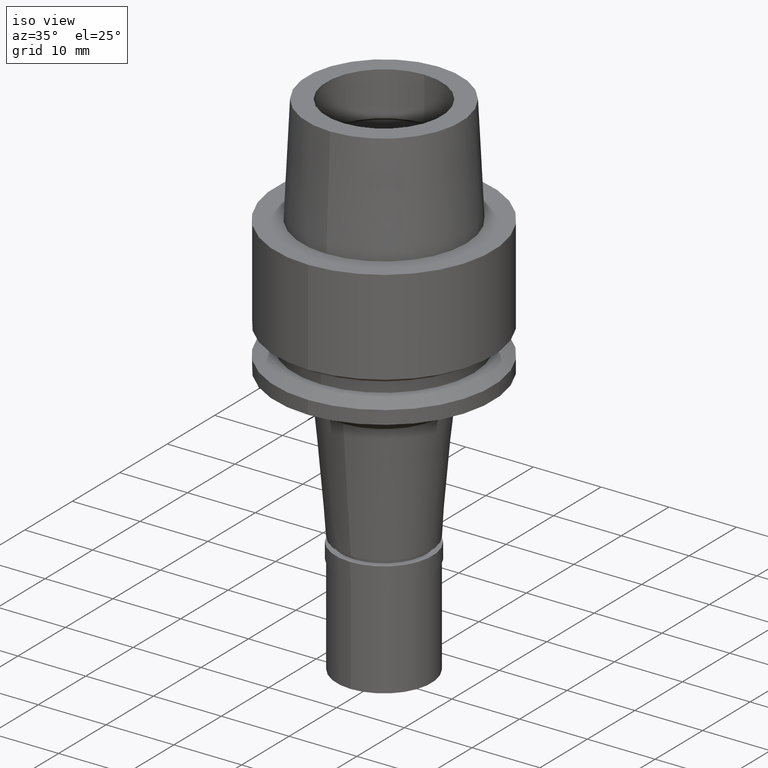
[diagram: clean part render]
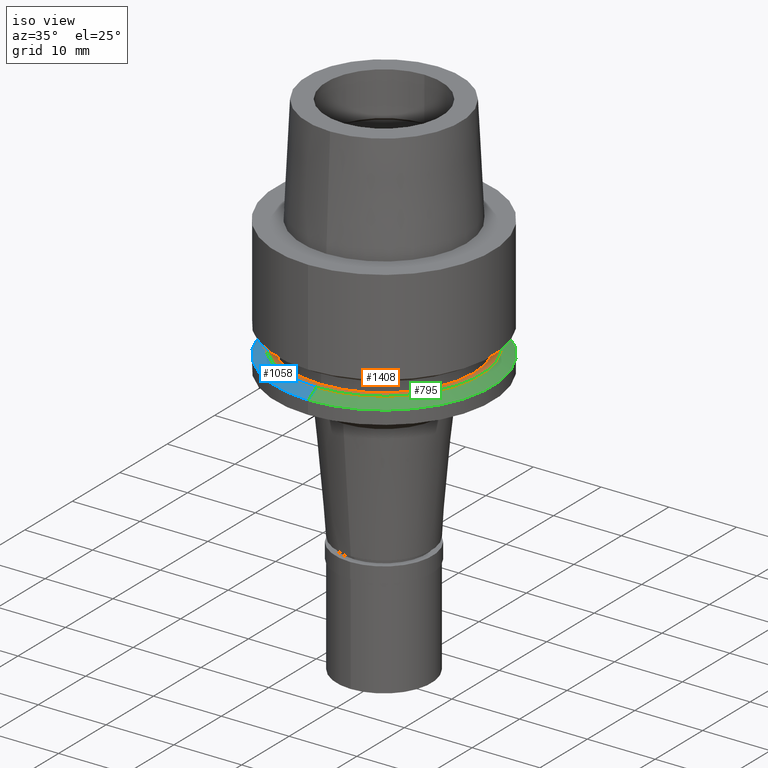
[diagram: same view with three faces highlighted in distinct colors, each labeled with its STEP entity id]
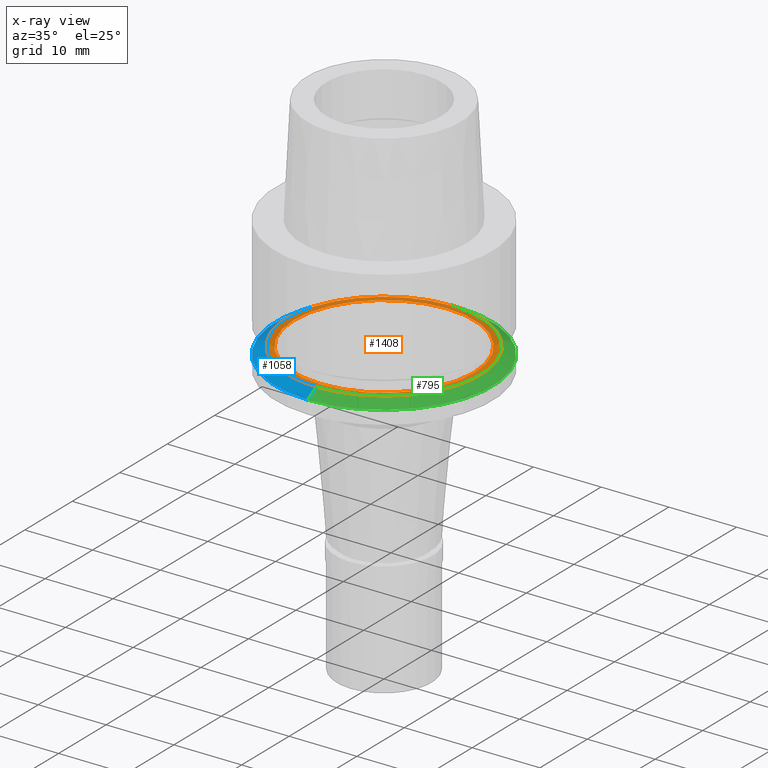
[diagram: x-ray of the same camera — body ghosted, the three highlighted faces saturated]
A machine part, iso view with three faces highlighted in distinct colors.
The next image is the same camera in x-ray (body ghosted, the three faces saturated) — at least one of them is partly hidden behind the body in this view.
Their STEP definitions:

[orange] entity #1408 — the highlighted planar face has unit normal (0, 0, -1).
#283 = ORIENTED_EDGE ( 'NONE', *, *, #1998, .F. ) ;
#363 = DIRECTION ( 'NONE',  ( 0.0000000000000000000, 0.0000000000000000000, -1.000000000000000000 ) ) ;
#395 = CARTESIAN_POINT ( 'NONE',  ( 0.0000000000000000000, 0.0000000000000000000, -17.00000000000000000 ) ) ;
#441 = CARTESIAN_POINT ( 'NONE',  ( 0.0000000000000000000, -14.23205080756999941, -17.00000000000000000 ) ) ;
#457 = VERTEX_POINT ( 'NONE', #2521 ) ;
#609 = DIRECTION ( 'NONE',  ( 0.0000000000000000000, 0.0000000000000000000, -1.000000000000000000 ) ) ;
#748 = ORIENTED_EDGE ( 'NONE', *, *, #1369, .F. ) ;
#786 = DIRECTION ( 'NONE',  ( 0.0000000000000000000, 0.0000000000000000000, 1.000000000000000000 ) ) ;
#792 = ORIENTED_EDGE ( 'NONE', *, *, #1356, .F. ) ;
#861 = VERTEX_POINT ( 'NONE', #1508 ) ;
#992 = DIRECTION ( 'NONE',  ( 0.0000000000000000000, 1.000000000000000000, 0.0000000000000000000 ) ) ;
#1059 = EDGE_LOOP ( 'NONE', ( #283, #792 ) ) ;
#1099 = ORIENTED_EDGE ( 'NONE', *, *, #2669, .F. ) ;
#1166 = CARTESIAN_POINT ( 'NONE',  ( 0.0000000000000000000, 13.25000000000000000, -17.00000000000000000 ) ) ;
#1217 = CARTESIAN_POINT ( 'NONE',  ( 0.0000000000000000000, 0.0000000000000000000, -17.00000000000000000 ) ) ;
#1239 = CIRCLE ( 'NONE', #2543, 14.23205080756999941 ) ;
#1356 = EDGE_CURVE ( 'NONE', #1573, #861, #1239, .T. ) ;
#1369 = EDGE_CURVE ( 'NONE', #1900, #457, #1893, .T. ) ;
#1408 = ADVANCED_FACE ( 'NONE', ( #1601, #2455 ), #2432, .F. ) ;
#1442 = DIRECTION ( 'NONE',  ( 0.0000000000000000000, 1.000000000000000000, 0.0000000000000000000 ) ) ;
#1508 = CARTESIAN_POINT ( 'NONE',  ( 0.0000000000000000000, 14.23205080756999941, -17.00000000000000000 ) ) ;
#1573 = VERTEX_POINT ( 'NONE', #441 ) ;
#1601 = FACE_OUTER_BOUND ( 'NONE', #1059, .T. ) ;
#1721 = AXIS2_PLACEMENT_3D ( 'NONE', #1843, #2671, #992 ) ;
#1843 = CARTESIAN_POINT ( 'NONE',  ( 0.0000000000000000000, 0.0000000000000000000, -17.00000000000000000 ) ) ;
#1893 = CIRCLE ( 'NONE', #1721, 13.25000000000000000 ) ;
#1900 = VERTEX_POINT ( 'NONE', #1166 ) ;
#1945 = CIRCLE ( 'NONE', #2001, 14.23205080756999941 ) ;
#1998 = EDGE_CURVE ( 'NONE', #861, #1573, #1945, .T. ) ;
#2001 = AXIS2_PLACEMENT_3D ( 'NONE', #395, #609, #1442 ) ;
#2049 = DIRECTION ( 'NONE',  ( 0.0000000000000000000, -1.000000000000000000, 0.0000000000000000000 ) ) ;
#2058 = DIRECTION ( 'NONE',  ( 0.0000000000000000000, -1.000000000000000000, 0.0000000000000000000 ) ) ;
#2226 = CARTESIAN_POINT ( 'NONE',  ( 0.0000000000000000000, 0.0000000000000000000, -17.00000000000000000 ) ) ;
#2251 = CARTESIAN_POINT ( 'NONE',  ( 0.0000000000000000000, 0.0000000000000000000, -17.00000000000000000 ) ) ;
#2253 = CIRCLE ( 'NONE', #2691, 13.25000000000000000 ) ;
#2259 = DIRECTION ( 'NONE',  ( 0.0000000000000000000, 0.0000000000000000000, -1.000000000000000000 ) ) ;
#2421 = AXIS2_PLACEMENT_3D ( 'NONE', #1217, #363, #2049 ) ;
#2432 = PLANE ( 'NONE',  #2421 ) ;
#2455 = FACE_BOUND ( 'NONE', #2601, .T. ) ;
#2521 = CARTESIAN_POINT ( 'NONE',  ( 0.0000000000000000000, -13.25000000000000000, -17.00000000000000000 ) ) ;
#2543 = AXIS2_PLACEMENT_3D ( 'NONE', #2226, #2259, #2663 ) ;
#2601 = EDGE_LOOP ( 'NONE', ( #748, #1099 ) ) ;
#2663 = DIRECTION ( 'NONE',  ( 0.0000000000000000000, -1.000000000000000000, 0.0000000000000000000 ) ) ;
#2669 = EDGE_CURVE ( 'NONE', #457, #1900, #2253, .T. ) ;
#2671 = DIRECTION ( 'NONE',  ( 0.0000000000000000000, 0.0000000000000000000, 1.000000000000000000 ) ) ;
#2691 = AXIS2_PLACEMENT_3D ( 'NONE', #2251, #786, #2058 ) ;

[blue] entity #1058 — the highlighted conical surface has half-angle 60 deg.
#52 = CARTESIAN_POINT ( 'NONE',  ( 0.0000000000000000000, 0.0000000000000000000, -18.02072594216000212 ) ) ;
#76 = CARTESIAN_POINT ( 'NONE',  ( 0.0000000000000000000, 0.0000000000000000000, -17.51036297107999928 ) ) ;
#266 = CARTESIAN_POINT ( 'NONE',  ( 0.0000000000000000000, 14.23205080756999941, -17.00000000000000000 ) ) ;
#441 = CARTESIAN_POINT ( 'NONE',  ( 0.0000000000000000000, -14.23205080756999941, -17.00000000000000000 ) ) ;
#451 = DIRECTION ( 'NONE',  ( 0.0000000000000000000, 0.0000000000000000000, -1.000000000000000000 ) ) ;
#509 = EDGE_CURVE ( 'NONE', #1068, #2666, #834, .T. ) ;
#569 = ORIENTED_EDGE ( 'NONE', *, *, #2210, .T. ) ;
#580 = EDGE_LOOP ( 'NONE', ( #1441, #1517, #1565, #569 ) ) ;
#596 = CARTESIAN_POINT ( 'NONE',  ( 0.0000000000000000000, -14.23205080756999941, -17.00000000000000000 ) ) ;
#834 = CIRCLE ( 'NONE', #1768, 16.00000000000000000 ) ;
#861 = VERTEX_POINT ( 'NONE', #1508 ) ;
#904 = DIRECTION ( 'NONE',  ( 0.0000000000000000000, -1.000000000000000000, 0.0000000000000000000 ) ) ;
#1058 = ADVANCED_FACE ( 'NONE', ( #1124 ), #1850, .T. ) ;
#1068 = VERTEX_POINT ( 'NONE', #1965 ) ;
#1124 = FACE_OUTER_BOUND ( 'NONE', #580, .T. ) ;
#1239 = CIRCLE ( 'NONE', #2543, 14.23205080756999941 ) ;
#1242 = VECTOR ( 'NONE', #1613, 1000.000000000000000 ) ;
#1285 = DIRECTION ( 'NONE',  ( 0.0000000000000000000, -1.000000000000000000, 0.0000000000000000000 ) ) ;
#1333 = DIRECTION ( 'NONE',  ( 0.0000000000000000000, 0.0000000000000000000, -1.000000000000000000 ) ) ;
#1356 = EDGE_CURVE ( 'NONE', #1573, #861, #1239, .T. ) ;
#1435 = EDGE_CURVE ( 'NONE', #1573, #1068, #2470, .T. ) ;
#1441 = ORIENTED_EDGE ( 'NONE', *, *, #509, .F. ) ;
#1508 = CARTESIAN_POINT ( 'NONE',  ( 0.0000000000000000000, 14.23205080756999941, -17.00000000000000000 ) ) ;
#1517 = ORIENTED_EDGE ( 'NONE', *, *, #1435, .F. ) ;
#1554 = VECTOR ( 'NONE', #2361, 1000.000000000000000 ) ;
#1565 = ORIENTED_EDGE ( 'NONE', *, *, #1356, .T. ) ;
#1573 = VERTEX_POINT ( 'NONE', #441 ) ;
#1613 = DIRECTION ( 'NONE',  ( 0.0000000000000000000, -0.8660254037847886499, -0.4999999999993937627 ) ) ;
#1768 = AXIS2_PLACEMENT_3D ( 'NONE', #52, #451, #1285 ) ;
#1812 = AXIS2_PLACEMENT_3D ( 'NONE', #76, #1333, #904 ) ;
#1850 = CONICAL_SURFACE ( 'NONE', #1812, 15.11602540378000015, 1.047197551196400456 ) ;
#1965 = CARTESIAN_POINT ( 'NONE',  ( 0.0000000000000000000, -16.00000000000000000, -18.02072594216000212 ) ) ;
#2075 = CARTESIAN_POINT ( 'NONE',  ( 0.0000000000000000000, 16.00000000000000000, -18.02072594216000212 ) ) ;
#2141 = LINE ( 'NONE', #266, #1554 ) ;
#2210 = EDGE_CURVE ( 'NONE', #861, #2666, #2141, .T. ) ;
#2226 = CARTESIAN_POINT ( 'NONE',  ( 0.0000000000000000000, 0.0000000000000000000, -17.00000000000000000 ) ) ;
#2259 = DIRECTION ( 'NONE',  ( 0.0000000000000000000, 0.0000000000000000000, -1.000000000000000000 ) ) ;
#2361 = DIRECTION ( 'NONE',  ( 0.0000000000000000000, 0.8660254037847886499, -0.4999999999993937627 ) ) ;
#2470 = LINE ( 'NONE', #596, #1242 ) ;
#2543 = AXIS2_PLACEMENT_3D ( 'NONE', #2226, #2259, #2663 ) ;
#2663 = DIRECTION ( 'NONE',  ( 0.0000000000000000000, -1.000000000000000000, 0.0000000000000000000 ) ) ;
#2666 = VERTEX_POINT ( 'NONE', #2075 ) ;

[green] entity #795 — the highlighted conical surface has half-angle 60 deg.
#119 = ORIENTED_EDGE ( 'NONE', *, *, #2210, .F. ) ;
#266 = CARTESIAN_POINT ( 'NONE',  ( 0.0000000000000000000, 14.23205080756999941, -17.00000000000000000 ) ) ;
#319 = CONICAL_SURFACE ( 'NONE', #404, 15.11602540378000015, 1.047197551196400456 ) ;
#395 = CARTESIAN_POINT ( 'NONE',  ( 0.0000000000000000000, 0.0000000000000000000, -17.00000000000000000 ) ) ;
#404 = AXIS2_PLACEMENT_3D ( 'NONE', #2184, #1809, #2639 ) ;
#441 = CARTESIAN_POINT ( 'NONE',  ( 0.0000000000000000000, -14.23205080756999941, -17.00000000000000000 ) ) ;
#596 = CARTESIAN_POINT ( 'NONE',  ( 0.0000000000000000000, -14.23205080756999941, -17.00000000000000000 ) ) ;
#609 = DIRECTION ( 'NONE',  ( 0.0000000000000000000, 0.0000000000000000000, -1.000000000000000000 ) ) ;
#645 = EDGE_CURVE ( 'NONE', #2666, #1068, #2035, .T. ) ;
#795 = ADVANCED_FACE ( 'NONE', ( #1144 ), #319, .T. ) ;
#835 = ORIENTED_EDGE ( 'NONE', *, *, #1998, .T. ) ;
#861 = VERTEX_POINT ( 'NONE', #1508 ) ;
#1068 = VERTEX_POINT ( 'NONE', #1965 ) ;
#1098 = AXIS2_PLACEMENT_3D ( 'NONE', #2437, #1983, #1571 ) ;
#1144 = FACE_OUTER_BOUND ( 'NONE', #1179, .T. ) ;
#1179 = EDGE_LOOP ( 'NONE', ( #835, #2204, #1839, #119 ) ) ;
#1242 = VECTOR ( 'NONE', #1613, 1000.000000000000000 ) ;
#1435 = EDGE_CURVE ( 'NONE', #1573, #1068, #2470, .T. ) ;
#1442 = DIRECTION ( 'NONE',  ( 0.0000000000000000000, 1.000000000000000000, 0.0000000000000000000 ) ) ;
#1508 = CARTESIAN_POINT ( 'NONE',  ( 0.0000000000000000000, 14.23205080756999941, -17.00000000000000000 ) ) ;
#1554 = VECTOR ( 'NONE', #2361, 1000.000000000000000 ) ;
#1571 = DIRECTION ( 'NONE',  ( 0.0000000000000000000, 1.000000000000000000, 0.0000000000000000000 ) ) ;
#1573 = VERTEX_POINT ( 'NONE', #441 ) ;
#1613 = DIRECTION ( 'NONE',  ( 0.0000000000000000000, -0.8660254037847886499, -0.4999999999993937627 ) ) ;
#1809 = DIRECTION ( 'NONE',  ( 0.0000000000000000000, 0.0000000000000000000, -1.000000000000000000 ) ) ;
#1839 = ORIENTED_EDGE ( 'NONE', *, *, #645, .F. ) ;
#1945 = CIRCLE ( 'NONE', #2001, 14.23205080756999941 ) ;
#1965 = CARTESIAN_POINT ( 'NONE',  ( 0.0000000000000000000, -16.00000000000000000, -18.02072594216000212 ) ) ;
#1983 = DIRECTION ( 'NONE',  ( 0.0000000000000000000, 0.0000000000000000000, -1.000000000000000000 ) ) ;
#1998 = EDGE_CURVE ( 'NONE', #861, #1573, #1945, .T. ) ;
#2001 = AXIS2_PLACEMENT_3D ( 'NONE', #395, #609, #1442 ) ;
#2035 = CIRCLE ( 'NONE', #1098, 16.00000000000000000 ) ;
#2075 = CARTESIAN_POINT ( 'NONE',  ( 0.0000000000000000000, 16.00000000000000000, -18.02072594216000212 ) ) ;
#2141 = LINE ( 'NONE', #266, #1554 ) ;
#2184 = CARTESIAN_POINT ( 'NONE',  ( 0.0000000000000000000, 0.0000000000000000000, -17.51036297107999928 ) ) ;
#2204 = ORIENTED_EDGE ( 'NONE', *, *, #1435, .T. ) ;
#2210 = EDGE_CURVE ( 'NONE', #861, #2666, #2141, .T. ) ;
#2361 = DIRECTION ( 'NONE',  ( 0.0000000000000000000, 0.8660254037847886499, -0.4999999999993937627 ) ) ;
#2437 = CARTESIAN_POINT ( 'NONE',  ( 0.0000000000000000000, 0.0000000000000000000, -18.02072594216000212 ) ) ;
#2470 = LINE ( 'NONE', #596, #1242 ) ;
#2639 = DIRECTION ( 'NONE',  ( 0.0000000000000000000, -1.000000000000000000, 0.0000000000000000000 ) ) ;
#2666 = VERTEX_POINT ( 'NONE', #2075 ) ;